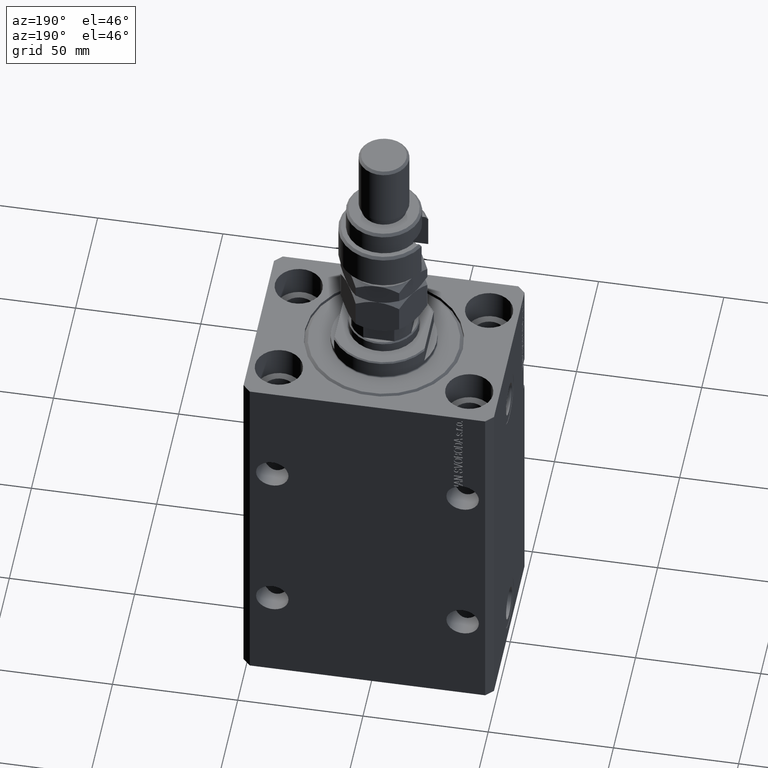
[diagram: clean part render]
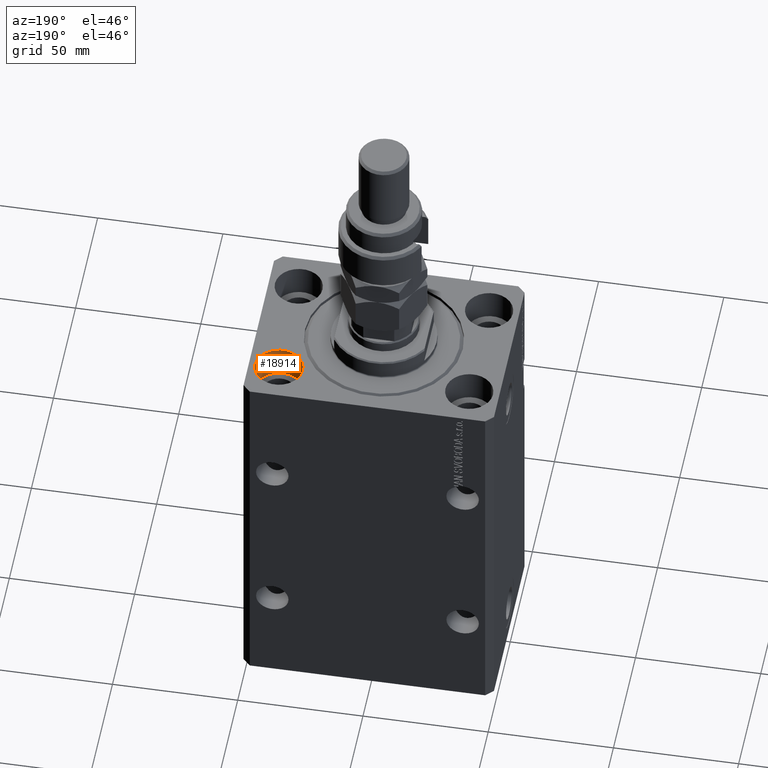
[diagram: same view with one face highlighted and labeled with its STEP entity id]
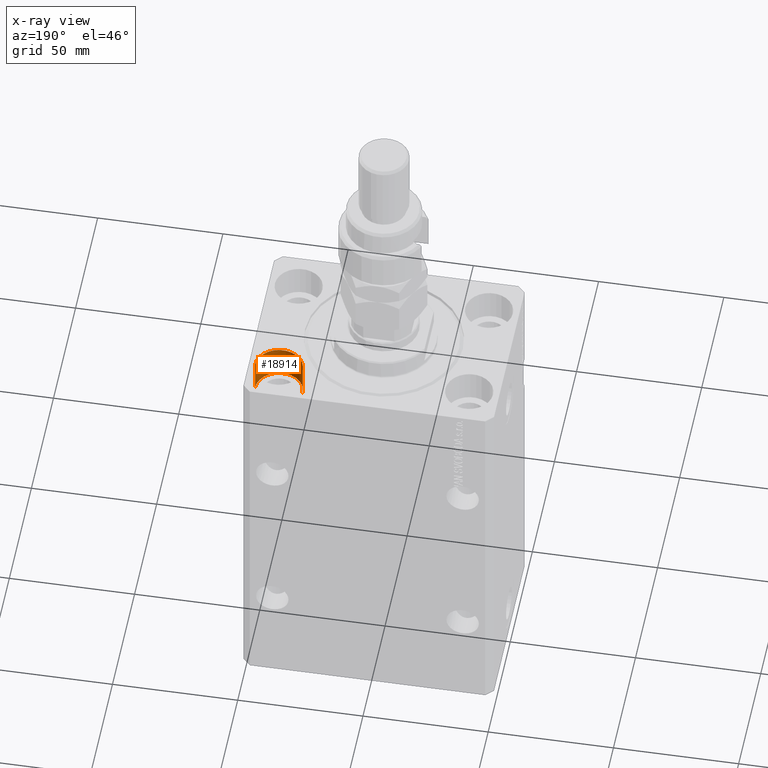
[diagram: x-ray of the same camera — body ghosted, the highlighted face saturated]
A machine part, auxiliary view. The second image highlights one B-rep face of the part: STEP entity #18914.
The next image is the same camera in x-ray: the body ghosted, the highlighted face saturated — about 0% of this face is hidden behind the body in this view.
In plain terms, the highlighted cylindrical surface (edge-blend (fillet) strip) has radius 9.5 mm, axis along (0, 0, 1).
Its self-contained STEP definition (entity closure, byte-faithful):
#2192 = EDGE_LOOP ( 'NONE', ( #6410, #39676, #25259, #46286 ) ) ;
#2742 = EDGE_CURVE ( 'NONE', #7709, #8917, #25326, .T. ) ;
#3670 = DIRECTION ( 'NONE',  ( 1.000000000000000000, 0.000000000000000000, 0.000000000000000000 ) ) ;
#4651 = DIRECTION ( 'NONE',  ( 1.000000000000000000, 0.000000000000000000, 0.000000000000000000 ) ) ;
#6410 = ORIENTED_EDGE ( 'NONE', *, *, #35439, .F. ) ;
#6623 = CARTESIAN_POINT ( 'NONE',  ( 28.50000000000000355, 22.50000000000001421, 0.000000000000000000 ) ) ;
#7361 = VECTOR ( 'NONE', #42059, 1000.000000000000000 ) ;
#7389 = CARTESIAN_POINT ( 'NONE',  ( 38.00000000000000711, 22.50000000000001421, 0.000000000000000000 ) ) ;
#7639 = DIRECTION ( 'NONE',  ( 1.000000000000000000, 0.000000000000000000, 0.000000000000000000 ) ) ;
#7709 = VERTEX_POINT ( 'NONE', #24726 ) ;
#8917 = VERTEX_POINT ( 'NONE', #6623 ) ;
#9091 = CARTESIAN_POINT ( 'NONE',  ( 47.50000000000000711, 22.50000000000001421, 0.000000000000000000 ) ) ;
#11958 = CARTESIAN_POINT ( 'NONE',  ( 47.50000000000000711, 22.50000000000001421, -13.00000000000000000 ) ) ;
#12316 = FACE_OUTER_BOUND ( 'NONE', #2192, .T. ) ;
#18522 = DIRECTION ( 'NONE',  ( 0.000000000000000000, 0.000000000000000000, 1.000000000000000000 ) ) ;
#18914 = ADVANCED_FACE ( 'NONE', ( #12316 ), #45858, .F. ) ;
#20988 = AXIS2_PLACEMENT_3D ( 'NONE', #42168, #23434, #4651 ) ;
#22924 = CARTESIAN_POINT ( 'NONE',  ( 38.00000000000000711, 22.50000000000001421, -13.00000000000000000 ) ) ;
#23434 = DIRECTION ( 'NONE',  ( -0.000000000000000000, -0.000000000000000000, 1.000000000000000000 ) ) ;
#24714 = VERTEX_POINT ( 'NONE', #9091 ) ;
#24726 = CARTESIAN_POINT ( 'NONE',  ( 28.50000000000000355, 22.50000000000001421, -13.00000000000000000 ) ) ;
#25259 = ORIENTED_EDGE ( 'NONE', *, *, #41780, .T. ) ;
#25326 = LINE ( 'NONE', #44059, #30201 ) ;
#30201 = VECTOR ( 'NONE', #40367, 1000.000000000000000 ) ;
#31694 = CIRCLE ( 'NONE', #48190, 9.500000000000001776 ) ;
#35439 = EDGE_CURVE ( 'NONE', #7709, #41073, #31694, .T. ) ;
#37252 = DIRECTION ( 'NONE',  ( 0.000000000000000000, 0.000000000000000000, 1.000000000000000000 ) ) ;
#39501 = LINE ( 'NONE', #11958, #7361 ) ;
#39634 = CIRCLE ( 'NONE', #45935, 9.500000000000001776 ) ;
#39676 = ORIENTED_EDGE ( 'NONE', *, *, #2742, .T. ) ;
#40367 = DIRECTION ( 'NONE',  ( -0.000000000000000000, -0.000000000000000000, 1.000000000000000000 ) ) ;
#40704 = CARTESIAN_POINT ( 'NONE',  ( 47.50000000000000711, 22.50000000000001421, -13.00000000000000000 ) ) ;
#41073 = VERTEX_POINT ( 'NONE', #40704 ) ;
#41780 = EDGE_CURVE ( 'NONE', #8917, #24714, #39634, .T. ) ;
#42059 = DIRECTION ( 'NONE',  ( -0.000000000000000000, -0.000000000000000000, 1.000000000000000000 ) ) ;
#42168 = CARTESIAN_POINT ( 'NONE',  ( 38.00000000000000711, 22.50000000000001421, -13.00000000000000000 ) ) ;
#42668 = EDGE_CURVE ( 'NONE', #41073, #24714, #39501, .T. ) ;
#44059 = CARTESIAN_POINT ( 'NONE',  ( 28.50000000000000355, 22.50000000000001421, -13.00000000000000000 ) ) ;
#45858 = CYLINDRICAL_SURFACE ( 'NONE', #20988, 9.500000000000001776 ) ;
#45935 = AXIS2_PLACEMENT_3D ( 'NONE', #7389, #18522, #7639 ) ;
#46286 = ORIENTED_EDGE ( 'NONE', *, *, #42668, .F. ) ;
#48190 = AXIS2_PLACEMENT_3D ( 'NONE', #22924, #37252, #3670 ) ;